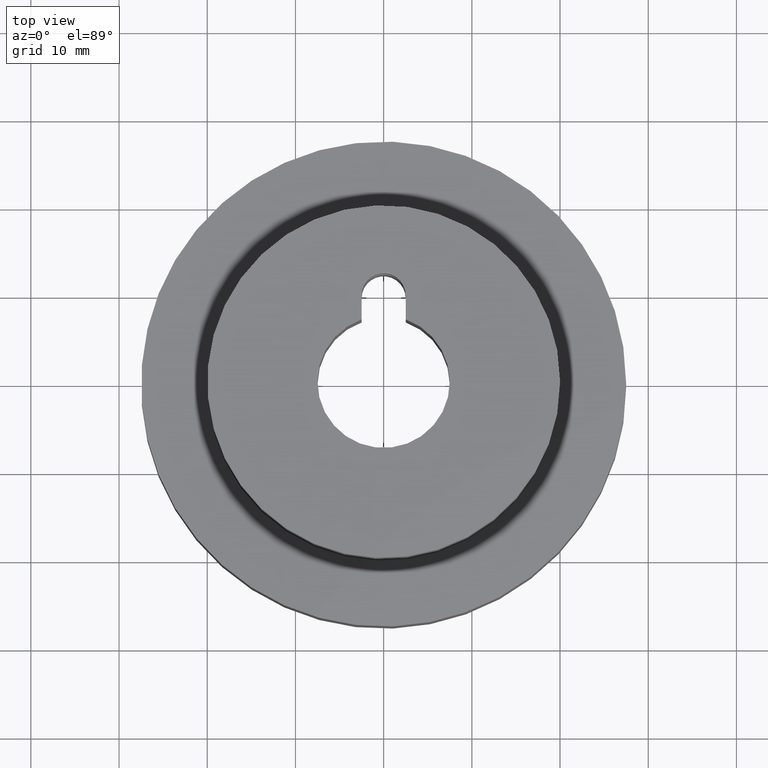
[diagram: clean part render]
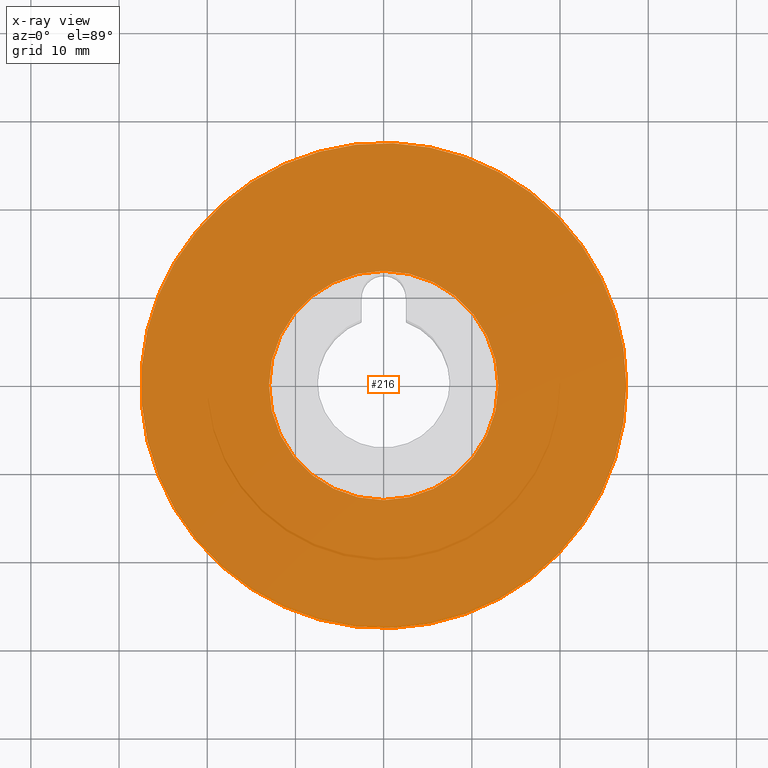
[diagram: x-ray — body ghosted, one internal face saturated and labeled with its STEP entity id]
A machine part, top view, then the same camera in x-ray: the body is ghosted and one INTERNAL B-rep face — a face not visible from any outside direction — is saturated and labeled: STEP entity #216.
In plain terms, the highlighted planar face has unit normal (0, 0, 1).
Its self-contained STEP definition (entity closure, byte-faithful):
#216 = ADVANCED_FACE( '', ( #247, #248 ), #249, .T. );
#247 = FACE_OUTER_BOUND( '', #319, .T. );
#248 = FACE_BOUND( '', #320, .T. );
#249 = PLANE( '', #321 );
#319 = EDGE_LOOP( '', ( #391 ) );
#320 = EDGE_LOOP( '', ( #392 ) );
#321 = AXIS2_PLACEMENT_3D( '', #393, #394, #395 );
#391 = ORIENTED_EDGE( '', *, *, #563, .T. );
#392 = ORIENTED_EDGE( '', *, *, #564, .T. );
#393 = CARTESIAN_POINT( '', ( 0.000000000000000, 0.000000000000000, 4.00000000000000 ) );
#394 = DIRECTION( '', ( 0.000000000000000, 0.000000000000000, 1.00000000000000 ) );
#395 = DIRECTION( '', ( 1.00000000000000, 0.000000000000000, 0.000000000000000 ) );
#563 = EDGE_CURVE( '', #609, #609, #610, .T. );
#564 = EDGE_CURVE( '', #611, #611, #612, .F. );
#609 = VERTEX_POINT( '', #689 );
#610 = CIRCLE( '', #690, 27.5000000000000 );
#611 = VERTEX_POINT( '', #691 );
#612 = CIRCLE( '', #692, 13.0000000000000 );
#689 = CARTESIAN_POINT( '', ( 27.5000000000000, 0.000000000000000, 4.00000000000000 ) );
#690 = AXIS2_PLACEMENT_3D( '', #933, #934, #935 );
#691 = CARTESIAN_POINT( '', ( 13.0000000000000, 0.000000000000000, 4.00000000000000 ) );
#692 = AXIS2_PLACEMENT_3D( '', #936, #937, #938 );
#933 = CARTESIAN_POINT( '', ( 0.000000000000000, 0.000000000000000, 4.00000000000000 ) );
#934 = DIRECTION( '', ( 0.000000000000000, 0.000000000000000, 1.00000000000000 ) );
#935 = DIRECTION( '', ( 1.00000000000000, 0.000000000000000, 0.000000000000000 ) );
#936 = CARTESIAN_POINT( '', ( 3.46944695195361E-015, 0.000000000000000, 4.00000000000000 ) );
#937 = DIRECTION( '', ( 0.000000000000000, 0.000000000000000, 1.00000000000000 ) );
#938 = DIRECTION( '', ( 1.00000000000000, 0.000000000000000, -0.000000000000000 ) );